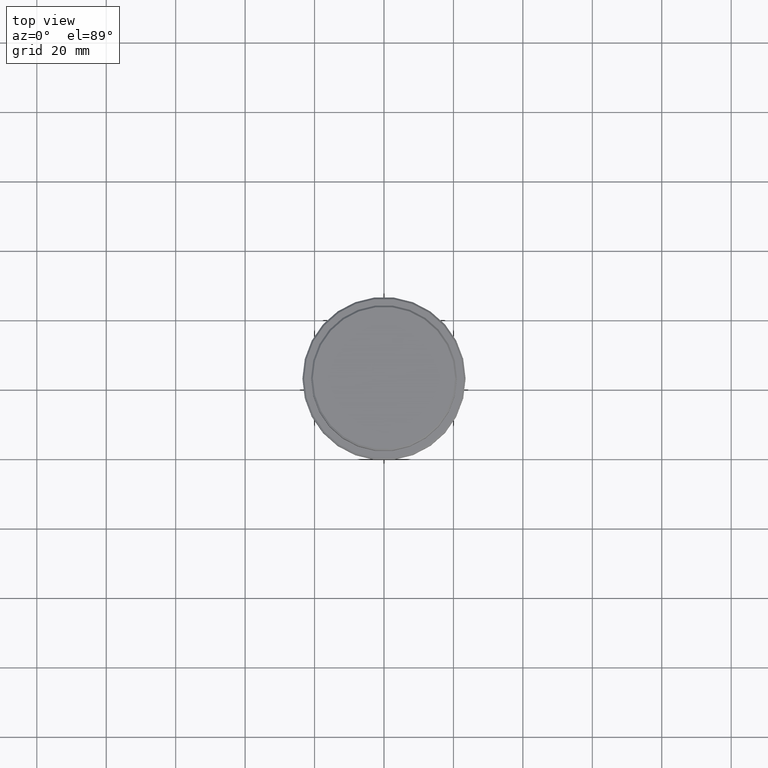
[diagram: clean part render]
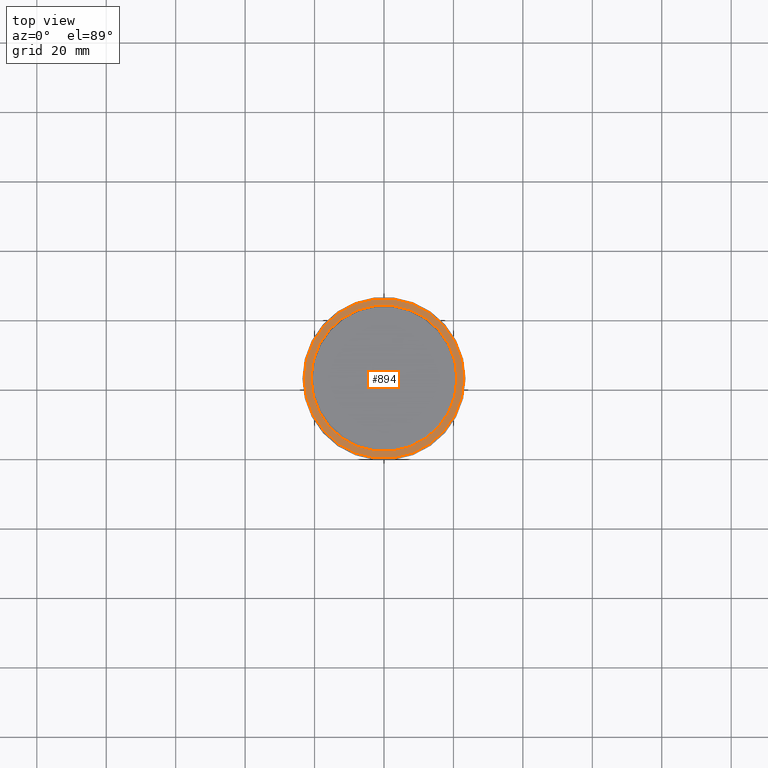
[diagram: same view with one face highlighted and labeled with its STEP entity id]
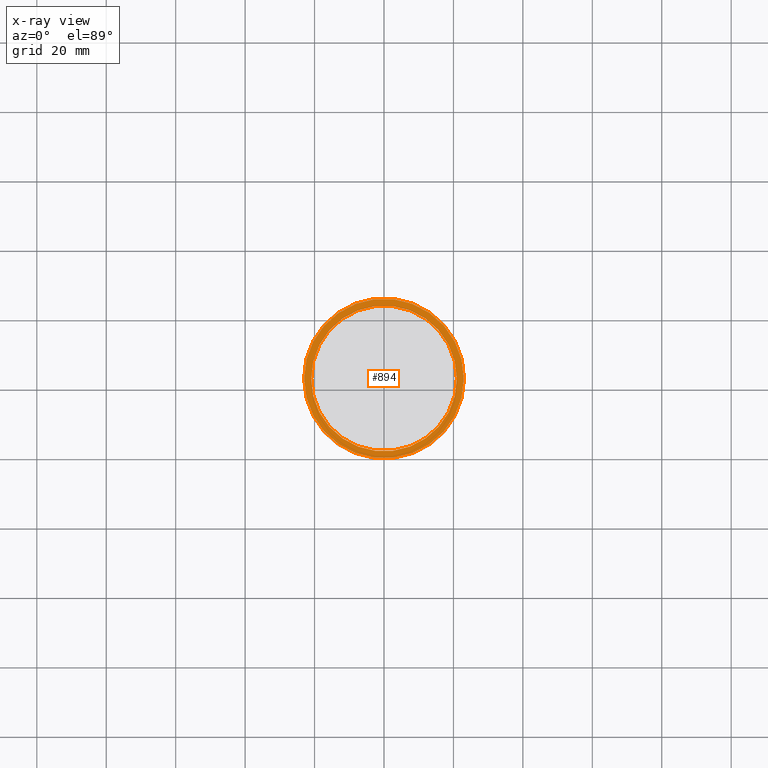
[diagram: x-ray of the same camera — body ghosted, the highlighted face saturated]
A machine part, top view. The second image highlights one B-rep face of the part: STEP entity #894.
The next image is the same camera in x-ray: the body ghosted, the highlighted face saturated — about 0% of this face is hidden behind the body in this view.
In plain terms, the highlighted planar face has unit normal (0, -0, 1).
Its self-contained STEP definition (entity closure, byte-faithful):
#9 = CARTESIAN_POINT ( 'NONE',  ( 0.000000000000000000, 0.000000000000000000, -9.000000000000000000 ) ) ;
#29 = DIRECTION ( 'NONE',  ( 1.000000000000000000, 0.000000000000000000, 0.000000000000000000 ) ) ;
#41 = DIRECTION ( 'NONE',  ( 1.000000000000000000, 0.000000000000000000, 0.000000000000000000 ) ) ;
#155 = AXIS2_PLACEMENT_3D ( 'NONE', #166, #1036, #41 ) ;
#160 = ORIENTED_EDGE ( 'NONE', *, *, #713, .T. ) ;
#166 = CARTESIAN_POINT ( 'NONE',  ( 0.000000000000000000, 20.49999999999999645, -9.000000000000000000 ) ) ;
#249 = AXIS2_PLACEMENT_3D ( 'NONE', #9, #1323, #348 ) ;
#320 = CIRCLE ( 'NONE', #1106, 20.99999999999999289 ) ;
#348 = DIRECTION ( 'NONE',  ( 1.000000000000000000, 0.000000000000000000, 0.000000000000000000 ) ) ;
#357 = CARTESIAN_POINT ( 'NONE',  ( 0.000000000000000000, 0.000000000000000000, -9.000000000000000000 ) ) ;
#380 = VERTEX_POINT ( 'NONE', #434 ) ;
#396 = CARTESIAN_POINT ( 'NONE',  ( 23.00000000000002487, 2.847303808017597717E-15, -9.000000000000000000 ) ) ;
#434 = CARTESIAN_POINT ( 'NONE',  ( 20.99999999999999289, 0.000000000000000000, -9.000000000000000000 ) ) ;
#456 = CARTESIAN_POINT ( 'NONE',  ( -20.99999999999999289, 2.571758278209440872E-15, -9.000000000000000000 ) ) ;
#459 = EDGE_LOOP ( 'NONE', ( #610, #160 ) ) ;
#546 = CIRCLE ( 'NONE', #249, 23.00000000000002487 ) ;
#553 = CARTESIAN_POINT ( 'NONE',  ( 0.000000000000000000, 0.000000000000000000, -9.000000000000000000 ) ) ;
#576 = CARTESIAN_POINT ( 'NONE',  ( 0.000000000000000000, 0.000000000000000000, -9.000000000000000000 ) ) ;
#595 = AXIS2_PLACEMENT_3D ( 'NONE', #357, #979, #1194 ) ;
#610 = ORIENTED_EDGE ( 'NONE', *, *, #741, .T. ) ;
#704 = FACE_OUTER_BOUND ( 'NONE', #915, .T. ) ;
#713 = EDGE_CURVE ( 'NONE', #1150, #380, #949, .T. ) ;
#741 = EDGE_CURVE ( 'NONE', #380, #1150, #320, .T. ) ;
#814 = ORIENTED_EDGE ( 'NONE', *, *, #1218, .T. ) ;
#834 = EDGE_CURVE ( 'NONE', #1052, #873, #546, .T. ) ;
#873 = VERTEX_POINT ( 'NONE', #396 ) ;
#894 = ADVANCED_FACE ( 'NONE', ( #704, #928 ), #1014, .T. ) ;
#904 = DIRECTION ( 'NONE',  ( 0.000000000000000000, 0.000000000000000000, -1.000000000000000000 ) ) ;
#909 = DIRECTION ( 'NONE',  ( 0.000000000000000000, 0.000000000000000000, -1.000000000000000000 ) ) ;
#915 = EDGE_LOOP ( 'NONE', ( #1020, #814 ) ) ;
#928 = FACE_BOUND ( 'NONE', #459, .T. ) ;
#930 = AXIS2_PLACEMENT_3D ( 'NONE', #576, #909, #29 ) ;
#940 = CARTESIAN_POINT ( 'NONE',  ( -23.00000000000002487, 0.000000000000000000, -9.000000000000000000 ) ) ;
#949 = CIRCLE ( 'NONE', #930, 20.99999999999999289 ) ;
#979 = DIRECTION ( 'NONE',  ( -0.000000000000000000, -0.000000000000000000, 1.000000000000000000 ) ) ;
#1014 = PLANE ( 'NONE',  #155 ) ;
#1020 = ORIENTED_EDGE ( 'NONE', *, *, #834, .T. ) ;
#1036 = DIRECTION ( 'NONE',  ( 0.000000000000000000, -0.000000000000000000, 1.000000000000000000 ) ) ;
#1052 = VERTEX_POINT ( 'NONE', #940 ) ;
#1106 = AXIS2_PLACEMENT_3D ( 'NONE', #553, #904, #1337 ) ;
#1150 = VERTEX_POINT ( 'NONE', #456 ) ;
#1194 = DIRECTION ( 'NONE',  ( 1.000000000000000000, 0.000000000000000000, 0.000000000000000000 ) ) ;
#1218 = EDGE_CURVE ( 'NONE', #873, #1052, #1275, .T. ) ;
#1275 = CIRCLE ( 'NONE', #595, 23.00000000000002487 ) ;
#1323 = DIRECTION ( 'NONE',  ( -0.000000000000000000, -0.000000000000000000, 1.000000000000000000 ) ) ;
#1337 = DIRECTION ( 'NONE',  ( 1.000000000000000000, 0.000000000000000000, 0.000000000000000000 ) ) ;